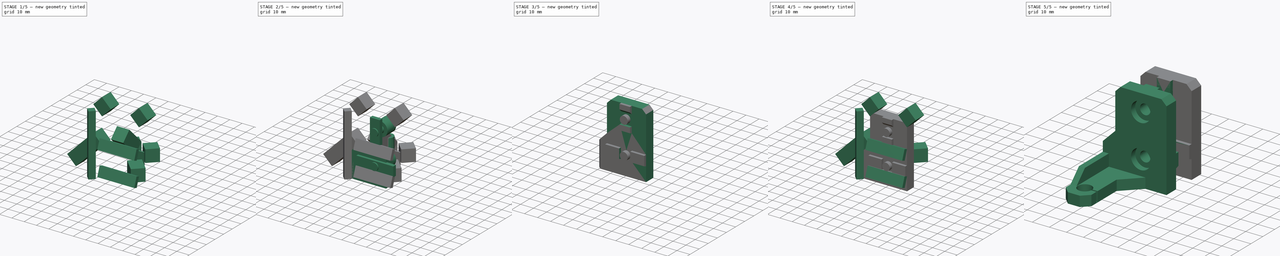
[diagram: build sequence overview — one tinted view per stage of 5, left to right]
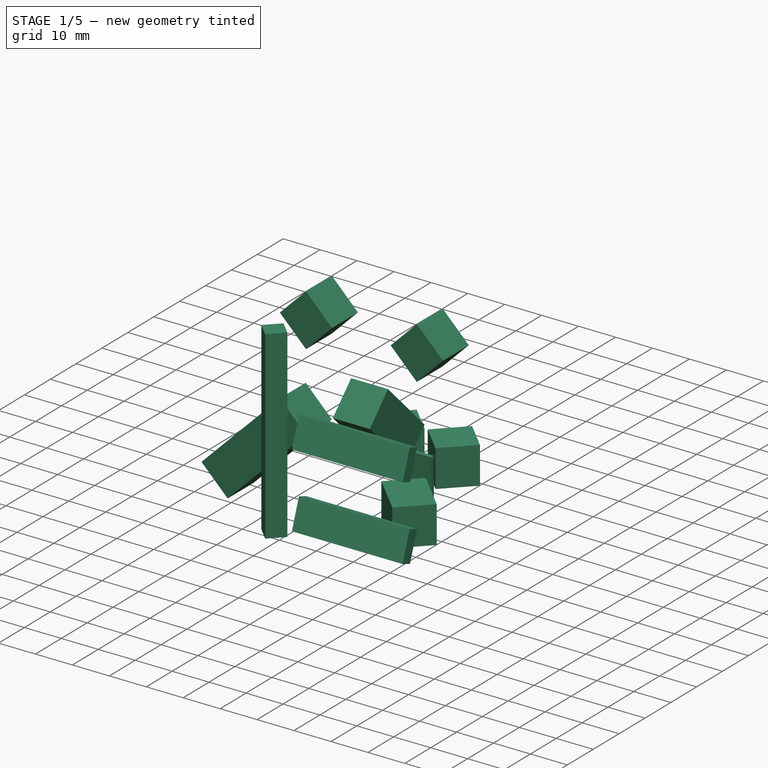
[diagram: stage 1 of 5 — iso view after this stage's code; geometry added in this stage tinted green]
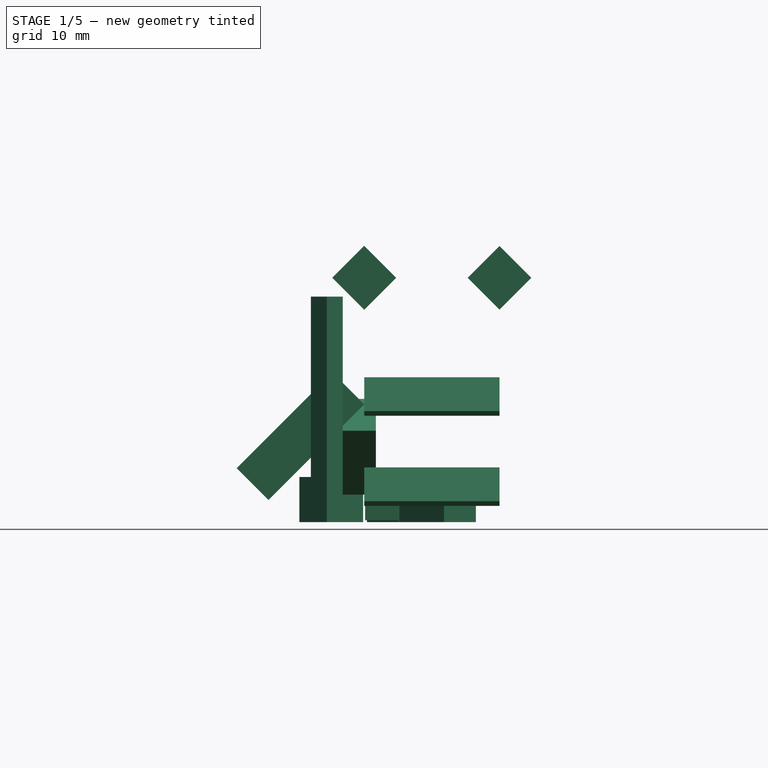
[diagram: stage 1 of 5 — front view after this stage's code; geometry added in this stage tinted green]
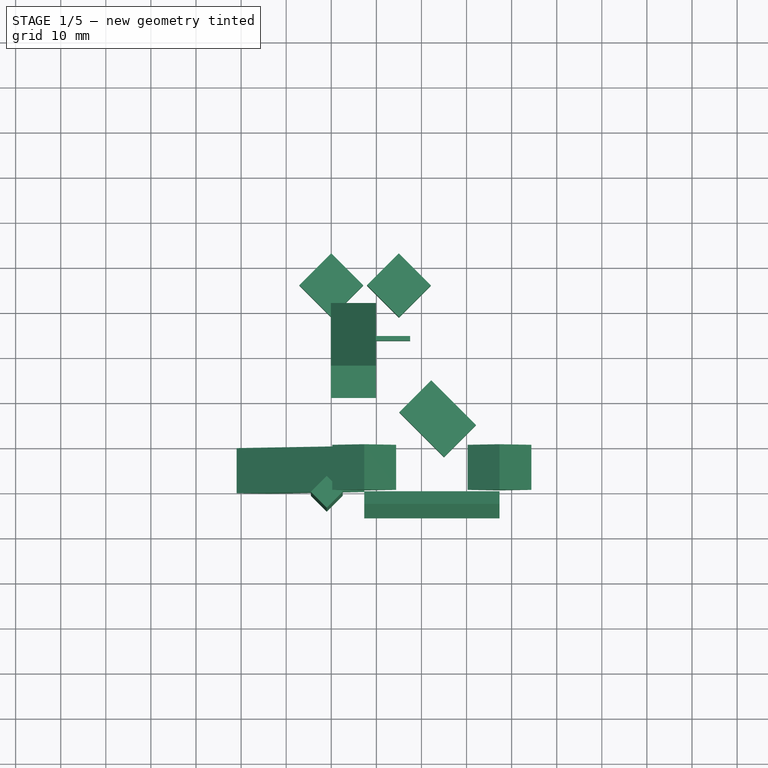
[diagram: stage 1 of 5 — top view after this stage's code; geometry added in this stage tinted green]
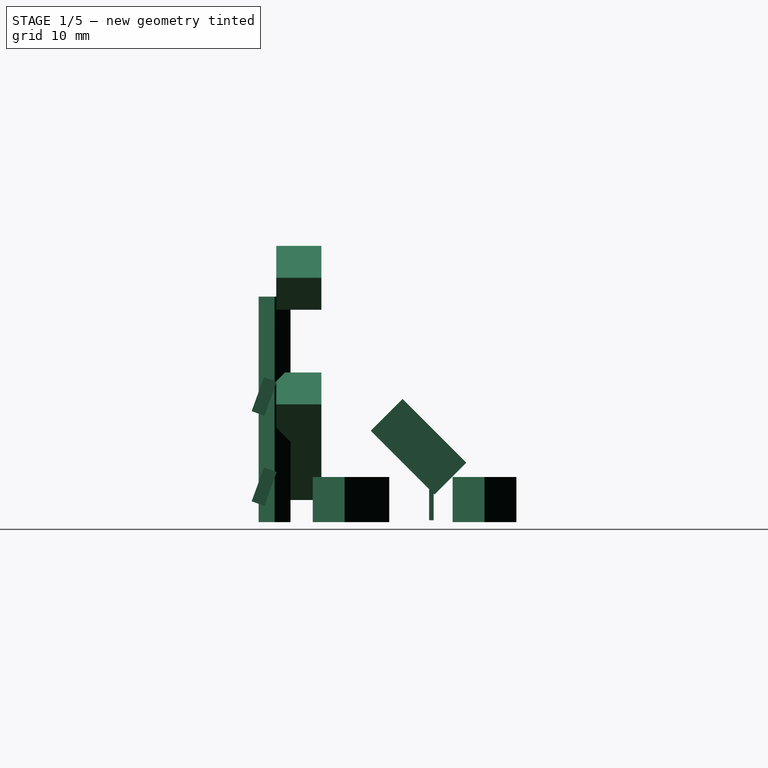
[diagram: stage 1 of 5 — right view after this stage's code; geometry added in this stage tinted green]
FCSTD DOCUMENT  (FreeCAD 0.19R)
Label: z-top
License: All rights reserved
LicenseURL: http://en.wikipedia.org/wiki/All_rights_reserved
objects: Part::Box×36, Part::Cylinder×10, Part::MultiFuse×6, Part::Fuse×3, Part::Cut×2, Part::Mirroring×1, PartDesign::FeatureBase×1, Sketcher::SketchObject×1, PartDesign::Pocket×1, PartDesign::Chamfer×1, PartDesign::Body×1
note: 65 computed .brp shape members not serialized (recipe doc carries the construction recipe); baked Part::Feature solids carry a one-line shape summary decoded from their .brp

FEATURE [Part::Box] cube007
  AttacherType = Attacher::AttachEngine3D
  Height = 30
  Length = 10
  Placement = pos=(7.3,-0.1,26) rot=(0,1,0;3.92699rad)
  Width = 10
FEATURE [Part::Box] cube008
  AttacherType = Attacher::AttachEngine3D
  Height = 20
  Length = 10
  Placement = pos=(-0.1,35,6) rot=(1,0,0;0.785398rad)
  Width = 10
FEATURE [Part::Box] cube009
  AttacherType = Attacher::AttachEngine3D
  Height = 10
  Length = 10
  Placement = pos=(0,39,-0.1) rot=(0,0,1;0.785398rad)
  Width = 10
FEATURE [Part::Box] cube010
  AttacherType = Attacher::AttachEngine3D
  Height = 10
  Length = 10
  Placement = pos=(15,39,-0.1) rot=(0,0,1;0.785398rad)
  Width = 10
FEATURE [Part::Box] cube011
  AttacherType = Attacher::AttachEngine3D
  Height = 10
  Length = 10
  Placement = pos=(7.5,33.8,0.3) rot=(0,0,1;0rad)
  Width = 1
FEATURE [Part::Box] cube012
  AttacherType = Attacher::AttachEngine3D
  Height = 50
  Length = 5
  Placement = pos=(-1,-4,-0.1) rot=(0,0,1;0.785398rad)
  Width = 5
FEATURE [Part::Box] cube013
  AttacherType = Attacher::AttachEngine3D
  Height = 10
  Length = 10
  Placement = pos=(7.3,-0.1,47) rot=(0,-1,0;0.785398rad)
  Width = 10
FEATURE [Part::Box] cube014
  AttacherType = Attacher::AttachEngine3D
  Height = 10
  Length = 10
  Placement = pos=(37.3,-0.1,47) rot=(0,-1,0;0.785398rad)
  Width = 10
FEATURE [Part::Box] cube015
  AttacherType = Attacher::AttachEngine3D
  Height = 10
  Length = 10
  Placement = pos=(25,8,-0.1) rot=(0,0,1;0.785398rad)
  Width = 14
FEATURE [Part::Box] cube016
  AttacherType = Attacher::AttachEngine3D
  Height = 8
  Length = 30
  Placement = pos=(7.3,0,11) rot=(1,0,0;2.79253rad)
  Width = 3
FEATURE [Part::Box] cube017
  AttacherType = Attacher::AttachEngine3D
  Height = 8
  Length = 30
  Placement = pos=(7.3,0,31) rot=(1,0,0;2.79253rad)
  Width = 3
FEATURE [Part::MultiFuse] Group001
  Shapes = -> [cube007,cube008,cube009,cube010,cube011,cube012,cube013,cube014,cube015,cube016,cube017]
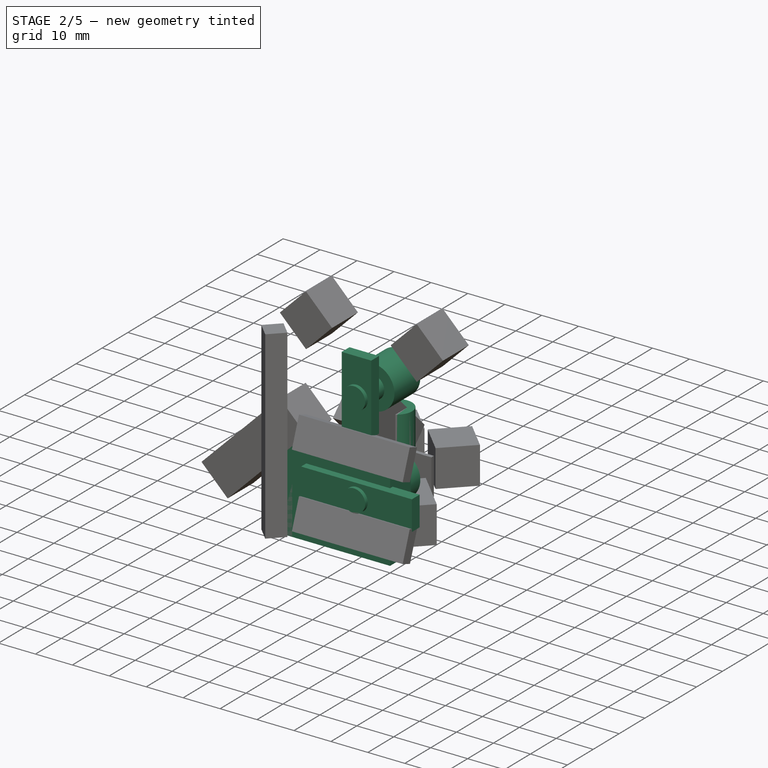
[diagram: stage 2 of 5 — iso view after this stage's code; geometry added in this stage tinted green]
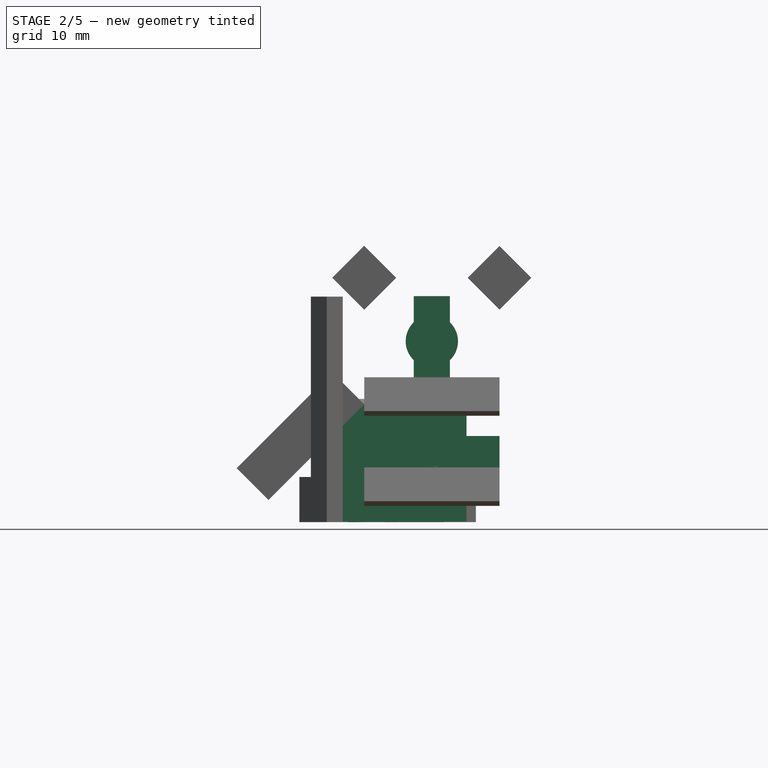
[diagram: stage 2 of 5 — front view after this stage's code; geometry added in this stage tinted green]
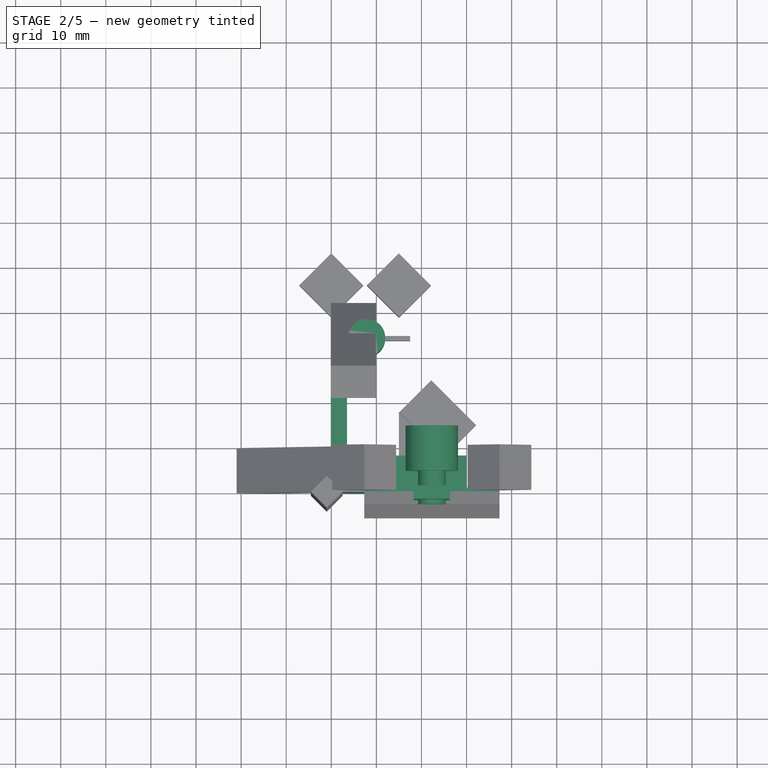
[diagram: stage 2 of 5 — top view after this stage's code; geometry added in this stage tinted green]
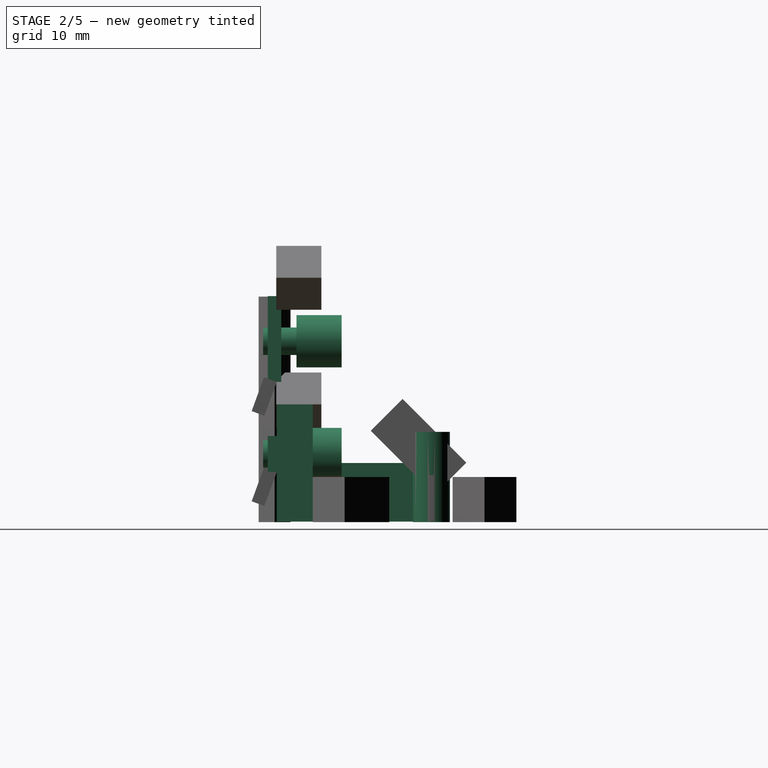
[diagram: stage 2 of 5 — right view after this stage's code; geometry added in this stage tinted green]
FEATURE [Part::Cylinder] cylinder
  Angle = 360
  AttacherType = Attacher::AttachEngine3D
  Height = 10
  Placement = pos=(22.3,4.4,15) rot=(-1,0,0;1.5708rad)
  Radius = 5.8
FEATURE [Part::Cylinder] cylinder001
  Angle = 360
  AttacherType = Attacher::AttachEngine3D
  Height = 10
  Placement = pos=(22.3,4.4,40) rot=(-1,0,0;1.5708rad)
  Radius = 5.8
FEATURE [Part::Cylinder] cylinder002
  Angle = 360
  AttacherType = Attacher::AttachEngine3D
  Height = 10
  Placement = pos=(22.3,-3,15) rot=(-1,0,0;1.5708rad)
  Radius = 3.05
FEATURE [Part::Cylinder] cylinder003
  Angle = 360
  AttacherType = Attacher::AttachEngine3D
  Height = 10
  Placement = pos=(22.3,-3,40) rot=(-1,0,0;1.5708rad)
  Radius = 3.05
FEATURE [Part::Cylinder] cylinder004
  Angle = 360
  AttacherType = Attacher::AttachEngine3D
  Height = 20
  Placement = pos=(7.85,34.3,-0.1) rot=(0,0,1;0rad)
  Radius = 4.1
FEATURE [Part::MultiFuse] Group002
  Shapes = -> [cylinder,cylinder001,cylinder002,cylinder003,cylinder004]
FEATURE [Part::Box] cube002
  AttacherType = Attacher::AttachEngine3D
  Height = 13
  Length = 3.5
  Width = 35
FEATURE [Part::Box] cube003
  AttacherType = Attacher::AttachEngine3D
  Height = 6
  Length = 10
  Placement = pos=(15,8,0) rot=(0,0,1;0rad)
  Width = 10
FEATURE [Part::Box] cube004
  AttacherType = Attacher::AttachEngine3D
  Height = 26
  Length = 30
  Width = 8
FEATURE [Part::Box] cube005
  AttacherType = Attacher::AttachEngine3D
  Height = 19
  Length = 8
  Placement = pos=(18.3,-2,31) rot=(0,0,1;0rad)
  Width = 3
FEATURE [Part::Box] cube006
  AttacherType = Attacher::AttachEngine3D
  Height = 8
  Length = 30
  Placement = pos=(7.3,-2,11) rot=(0,0,1;0rad)
  Width = 3
FEATURE [Part::Fuse] union
  Base = -> Group001
  Tool = -> Group002
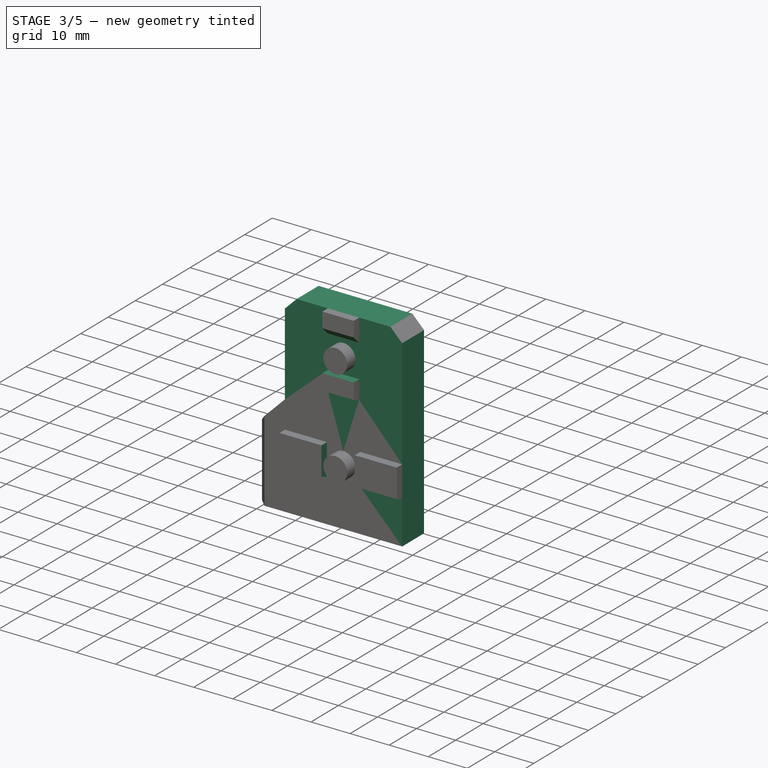
[diagram: stage 3 of 5 — iso view after this stage's code; geometry added in this stage tinted green]
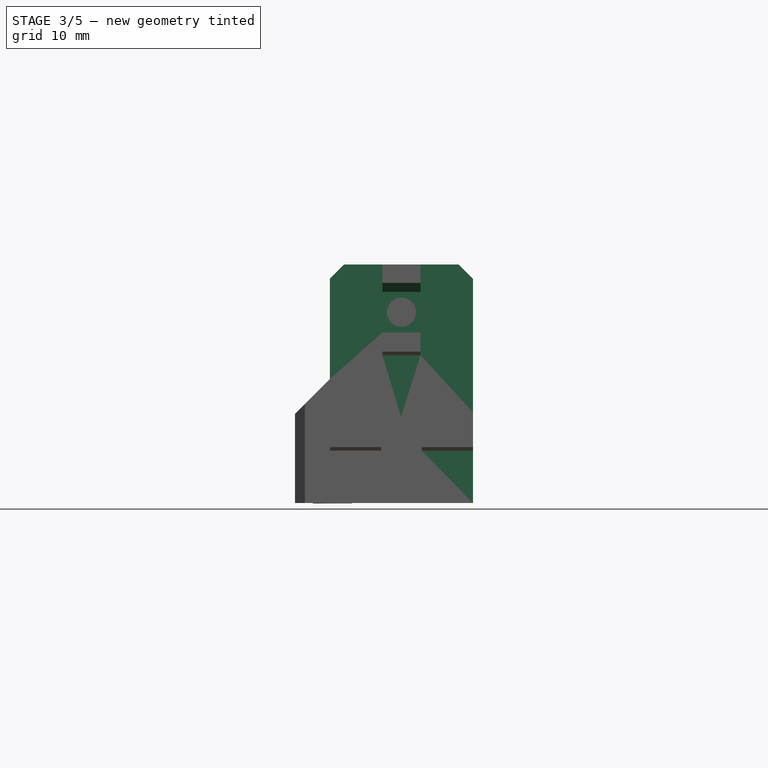
[diagram: stage 3 of 5 — front view after this stage's code; geometry added in this stage tinted green]
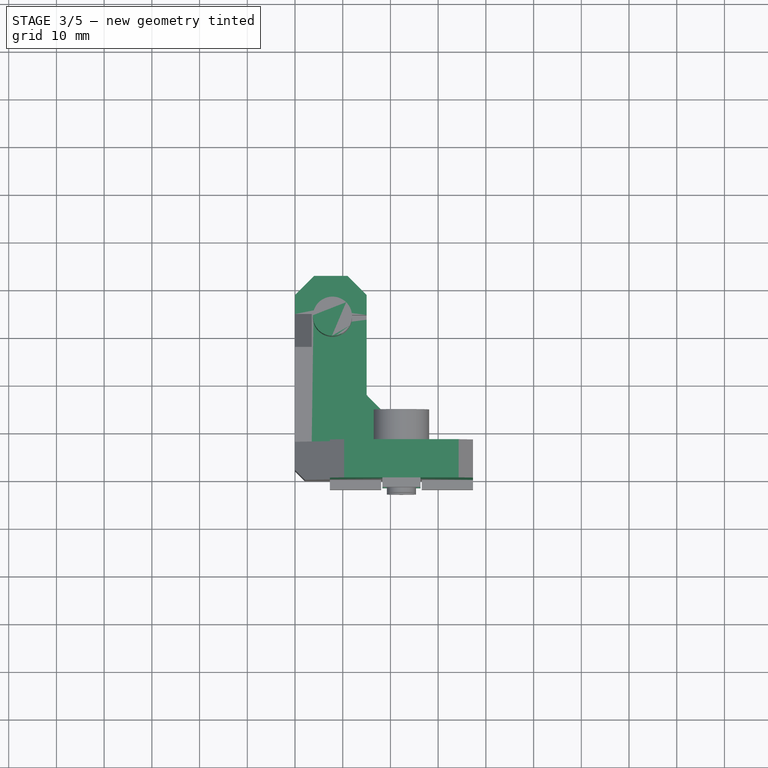
[diagram: stage 3 of 5 — top view after this stage's code; geometry added in this stage tinted green]
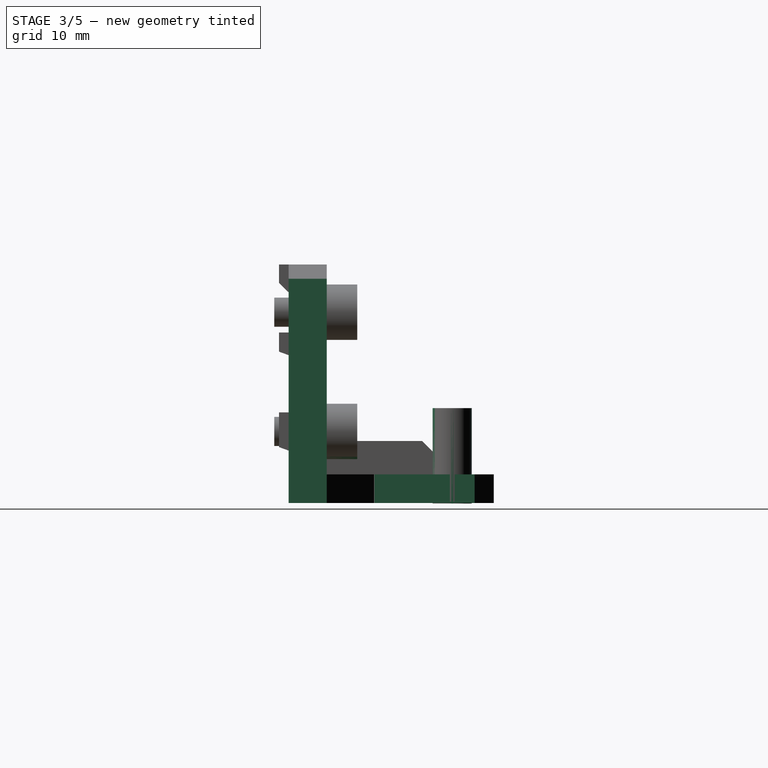
[diagram: stage 3 of 5 — right view after this stage's code; geometry added in this stage tinted green]
FEATURE [Part::Cylinder] cylinder005
  Angle = 360
  AttacherType = Attacher::AttachEngine3D
  Height = 10
  Placement = pos=(22.3,4.4,15) rot=(-1,0,0;1.5708rad)
  Radius = 5.8
FEATURE [Part::Cylinder] cylinder006
  Angle = 360
  AttacherType = Attacher::AttachEngine3D
  Height = 10
  Placement = pos=(22.3,4.4,40) rot=(-1,0,0;1.5708rad)
  Radius = 5.8
FEATURE [Part::Cylinder] cylinder007
  Angle = 360
  AttacherType = Attacher::AttachEngine3D
  Height = 10
  Placement = pos=(22.3,-3,15) rot=(-1,0,0;1.5708rad)
  Radius = 3.05
FEATURE [Part::Cylinder] cylinder008
  Angle = 360
  AttacherType = Attacher::AttachEngine3D
  Height = 10
  Placement = pos=(22.3,-3,40) rot=(-1,0,0;1.5708rad)
  Radius = 3.05
FEATURE [Part::Cylinder] cylinder009
  Angle = 360
  AttacherType = Attacher::AttachEngine3D
  Height = 20
  Placement = pos=(7.85,34.3,-0.1) rot=(0,0,1;0rad)
  Radius = 4.1
FEATURE [Part::MultiFuse] Group005
  Shapes = -> [cylinder005,cylinder006,cylinder007,cylinder008,cylinder009]
FEATURE [Part::Box] cube
  AttacherType = Attacher::AttachEngine3D
  Height = 50
  Length = 30
  Placement = pos=(7.3,0,0) rot=(0,0,1;0rad)
  Width = 8
FEATURE [Part::Box] cube001
  AttacherType = Attacher::AttachEngine3D
  Height = 6
  Length = 15
  Width = 43
FEATURE [Part::MultiFuse] Group
  Shapes = -> [cube,cube001,cube002,cube003,cube004,cube005,cube006]
FEATURE [Part::Cut] difference
  Base = -> Group
  Refine = true
  Tool = -> union
FEATURE [PartDesign::FeatureBase] BaseFeature
  BaseFeature = -> difference
FEATURE [Sketcher::SketchObject] Sketch
  ExternalGeometry = -> [BaseFeature]
  FullyConstrained = true
  MapMode = 5
  Placement = pos=(0,-2,0) rot=(1,0,0;1.5708rad)
  Support = -> [BaseFeature]
  sketch-geometry (10):
    g0: LineSegment StartX=18.05 StartY=19 StartZ=0 EndX=26.55 EndY=19 EndZ=0
    g1: LineSegment StartX=26.55 StartY=19 StartZ=0 EndX=26.55 EndY=11 EndZ=0
    g2: LineSegment StartX=26.55 StartY=11 StartZ=0 EndX=18.05 EndY=11 EndZ=0
    g3: LineSegment StartX=18.05 StartY=11 StartZ=0 EndX=18.05 EndY=19 EndZ=0
    g4: LineSegment StartX=18.3 StartY=44.25 StartZ=0 EndX=26.3 EndY=44.25 EndZ=0
    g5: LineSegment StartX=26.3 StartY=44.25 StartZ=0 EndX=26.3 EndY=35.75 EndZ=0
    g6: LineSegment StartX=26.3 StartY=35.75 StartZ=0 EndX=18.3 EndY=35.75 EndZ=0
    g7: LineSegment StartX=18.3 StartY=35.75 StartZ=0 EndX=18.3 EndY=44.25 EndZ=0
    g8: LineSegment StartX=22.3 StartY=40 StartZ=0 EndX=26.3 EndY=40 EndZ=0
    g9: LineSegment StartX=22.3 StartY=15 StartZ=0 EndX=22.3 EndY=19 EndZ=0
  constraints (28):
    c: Coincident(g0,g1)
    c: Coincident(g2,g3)
    c: Coincident(g3,g0)
    c: Horizontal(g0)
    c: Horizontal(g2)
    c: Vertical(g1)
    c: Vertical(g3)
    c: PointOnObject(g0,g-5)
    c: Coincident(g4,g5)
    c: Coincident(g5,g6)
    c: Coincident(g6,g7)
    c: Coincident(g7,g4)
    c: Horizontal(g4)
    c: Horizontal(g6)
    c: Vertical(g5)
    c: Vertical(g7)
    c: PointOnObject(g4,g-4)
    c: PointOnObject(g5,g-3)
    c: Coincident(g2,g1)
    c: PointOnObject(g1,g-9)
    c: Coincident(g8,g-8)
    c: PointOnObject(g8,g5)
    c: Coincident(g9,g-7)
    c: PointOnObject(g9,g0)
    c: Symmetric(g5,g4,g8)
    c: DistanceY(g7,g7) = 8.5
    c: Symmetric(g0,g0,g9)
    c: Equal(g7,g0)
FEATURE [PartDesign::Pocket] Pocket
  BaseFeature = -> BaseFeature
  Length = 2
  Length2 = 100
  Profile = -> Sketch
  Type = 0
FEATURE [PartDesign::Chamfer] Chamfer
  Angle = 45
  Base = -> Pocket [Edge101]
  BaseFeature = -> Pocket
  ChamferType = 0
  FlipDirection = false
  Refine = true
  Size = 1.9
  Size2 = 1
  SupportTransform = false
FEATURE [PartDesign::Body] Body
  BaseFeature = -> difference
  Group = -> [BaseFeature,Sketch,Pocket,Chamfer]
  Origin = -> Origin
  Tip = -> Chamfer
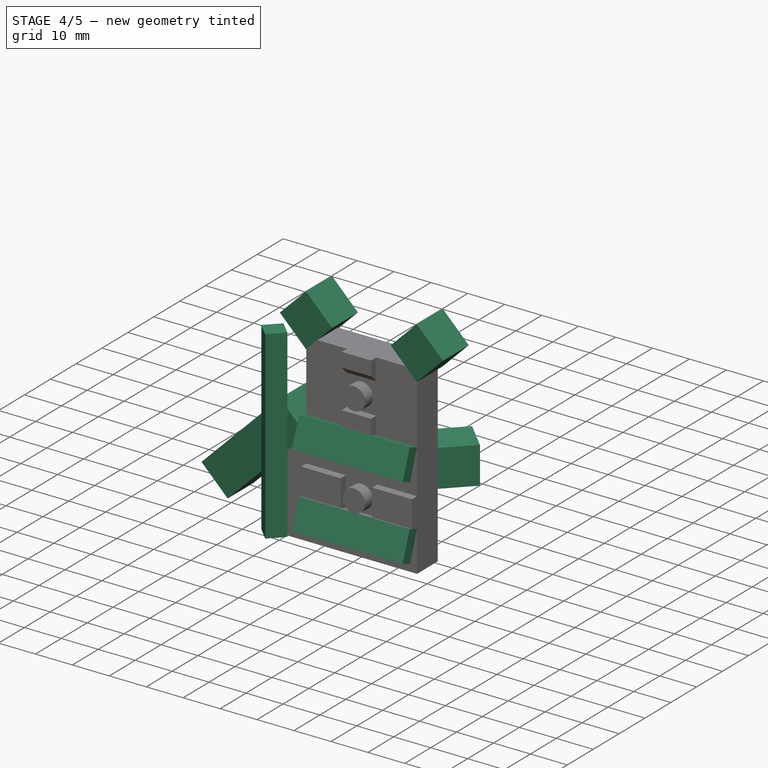
[diagram: stage 4 of 5 — iso view after this stage's code; geometry added in this stage tinted green]
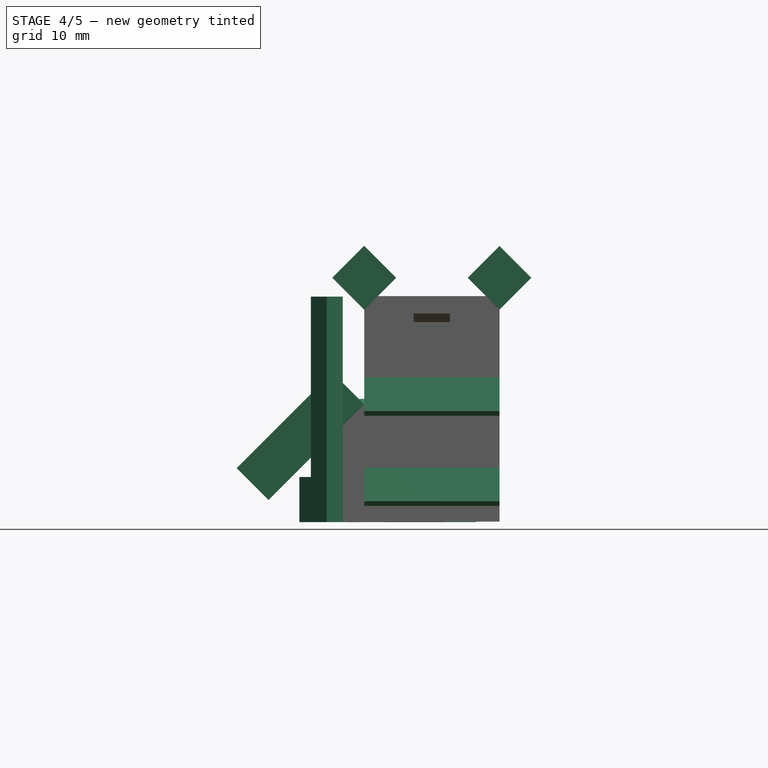
[diagram: stage 4 of 5 — front view after this stage's code; geometry added in this stage tinted green]
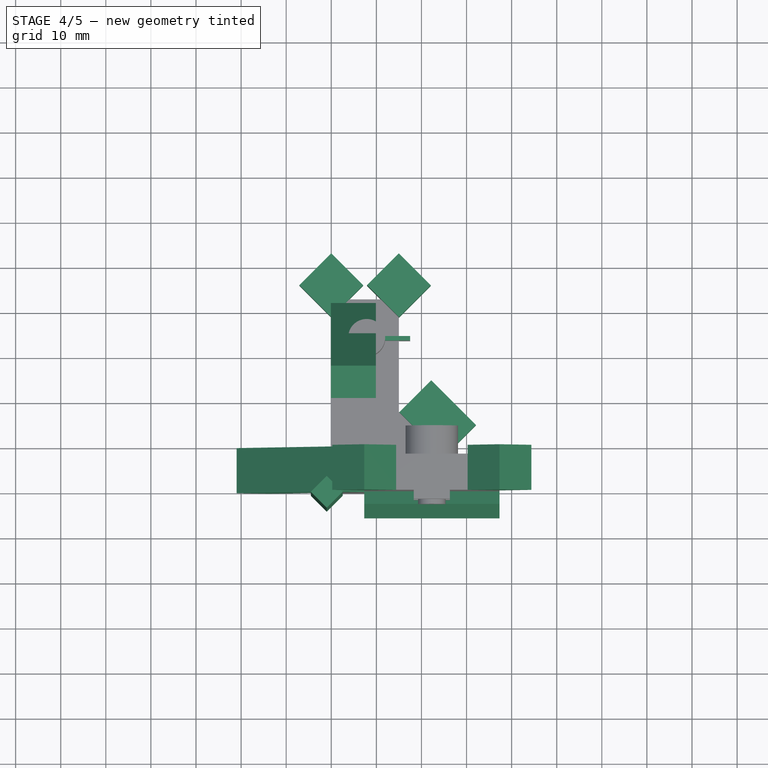
[diagram: stage 4 of 5 — top view after this stage's code; geometry added in this stage tinted green]
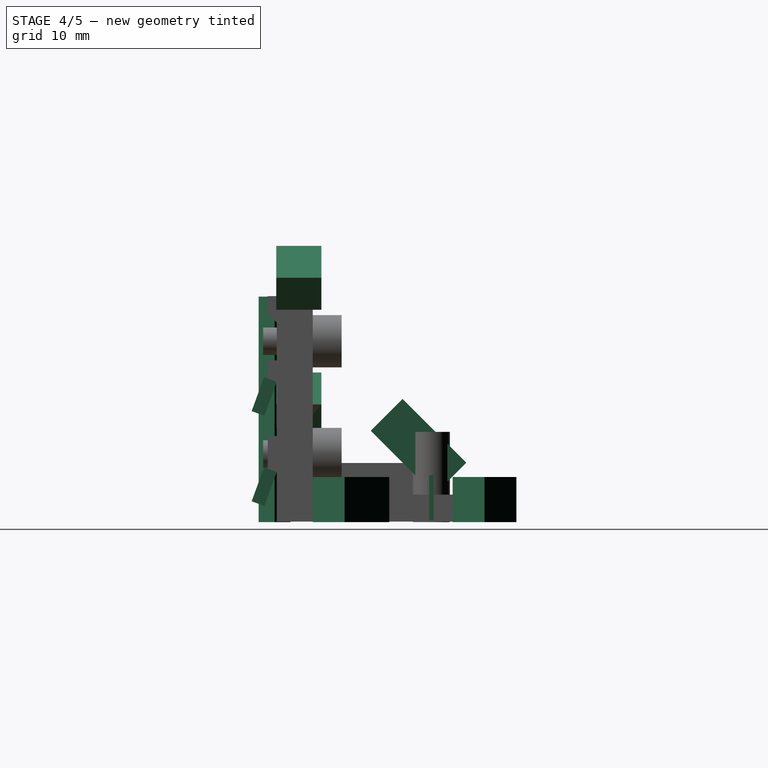
[diagram: stage 4 of 5 — right view after this stage's code; geometry added in this stage tinted green]
FEATURE [Part::Box] cube025
  AttacherType = Attacher::AttachEngine3D
  Height = 30
  Length = 10
  Placement = pos=(7.3,-0.1,26) rot=(0,1,0;3.92699rad)
  Width = 10
FEATURE [Part::Box] cube026
  AttacherType = Attacher::AttachEngine3D
  Height = 20
  Length = 10
  Placement = pos=(-0.1,35,6) rot=(1,0,0;0.785398rad)
  Width = 10
FEATURE [Part::Box] cube027
  AttacherType = Attacher::AttachEngine3D
  Height = 10
  Length = 10
  Placement = pos=(0,39,-0.1) rot=(0,0,1;0.785398rad)
  Width = 10
FEATURE [Part::Box] cube028
  AttacherType = Attacher::AttachEngine3D
  Height = 10
  Length = 10
  Placement = pos=(15,39,-0.1) rot=(0,0,1;0.785398rad)
  Width = 10
FEATURE [Part::Box] cube029
  AttacherType = Attacher::AttachEngine3D
  Height = 10
  Length = 10
  Placement = pos=(7.5,33.8,0.3) rot=(0,0,1;0rad)
  Width = 1
FEATURE [Part::Box] cube030
  AttacherType = Attacher::AttachEngine3D
  Height = 50
  Length = 5
  Placement = pos=(-1,-4,-0.1) rot=(0,0,1;0.785398rad)
  Width = 5
FEATURE [Part::Box] cube031
  AttacherType = Attacher::AttachEngine3D
  Height = 10
  Length = 10
  Placement = pos=(7.3,-0.1,47) rot=(0,-1,0;0.785398rad)
  Width = 10
FEATURE [Part::Box] cube032
  AttacherType = Attacher::AttachEngine3D
  Height = 10
  Length = 10
  Placement = pos=(37.3,-0.1,47) rot=(0,-1,0;0.785398rad)
  Width = 10
FEATURE [Part::Box] cube033
  AttacherType = Attacher::AttachEngine3D
  Height = 10
  Length = 10
  Placement = pos=(25,8,-0.1) rot=(0,0,1;0.785398rad)
  Width = 14
FEATURE [Part::Box] cube034
  AttacherType = Attacher::AttachEngine3D
  Height = 8
  Length = 30
  Placement = pos=(7.3,0,11) rot=(1,0,0;2.79253rad)
  Width = 3
FEATURE [Part::Box] cube035
  AttacherType = Attacher::AttachEngine3D
  Height = 8
  Length = 30
  Placement = pos=(7.3,0,31) rot=(1,0,0;2.79253rad)
  Width = 3
FEATURE [Part::MultiFuse] Group004
  Shapes = -> [cube025,cube026,cube027,cube028,cube029,cube030,cube031,cube032,cube033,cube034,cube035]
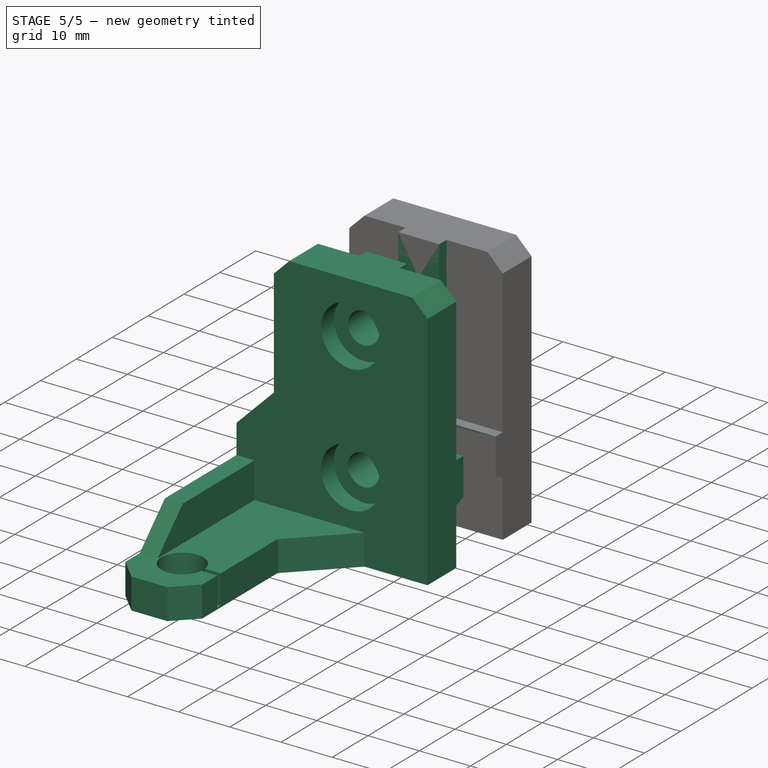
[diagram: stage 5 of 5 — iso view after this stage's code; geometry added in this stage tinted green]
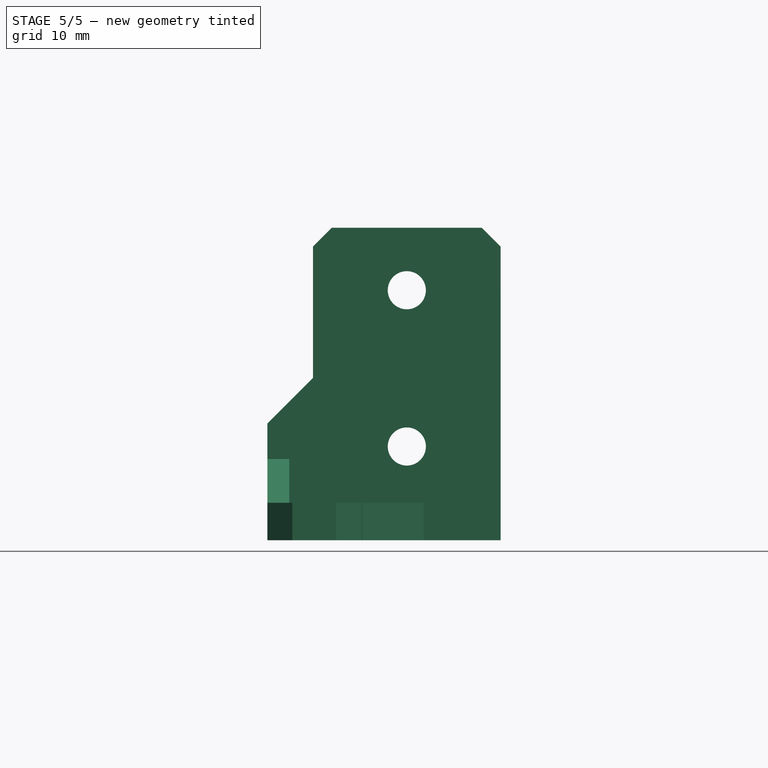
[diagram: stage 5 of 5 — front view after this stage's code; geometry added in this stage tinted green]
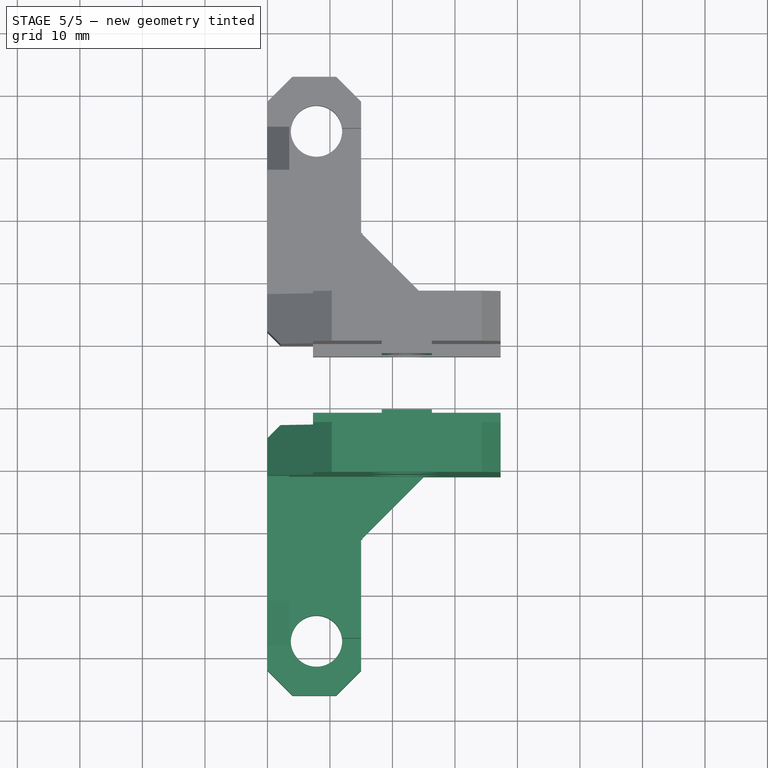
[diagram: stage 5 of 5 — top view after this stage's code; geometry added in this stage tinted green]
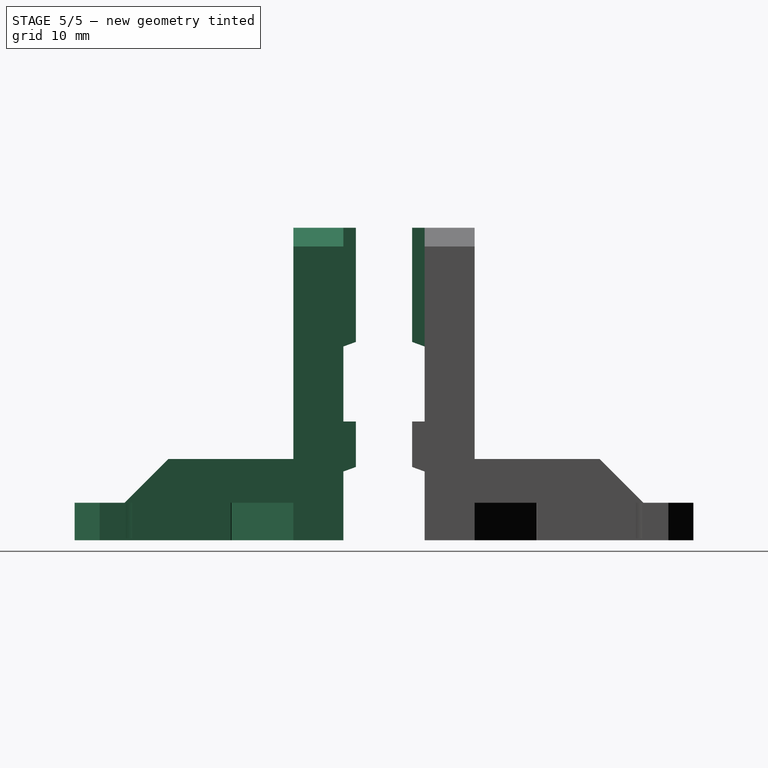
[diagram: stage 5 of 5 — right view after this stage's code; geometry added in this stage tinted green]
FEATURE [Part::Box] cube018
  AttacherType = Attacher::AttachEngine3D
  Height = 50
  Length = 30
  Placement = pos=(7.3,0,0) rot=(0,0,1;0rad)
  Width = 8
FEATURE [Part::Box] cube019
  AttacherType = Attacher::AttachEngine3D
  Height = 6
  Length = 15
  Width = 43
FEATURE [Part::Box] cube020
  AttacherType = Attacher::AttachEngine3D
  Height = 13
  Length = 3.5
  Width = 35
FEATURE [Part::Box] cube021
  AttacherType = Attacher::AttachEngine3D
  Height = 6
  Length = 10
  Placement = pos=(15,8,0) rot=(0,0,1;0rad)
  Width = 10
FEATURE [Part::Box] cube022
  AttacherType = Attacher::AttachEngine3D
  Height = 26
  Length = 30
  Width = 8
FEATURE [Part::Box] cube023
  AttacherType = Attacher::AttachEngine3D
  Height = 19
  Length = 8
  Placement = pos=(18.3,-2,31) rot=(0,0,1;0rad)
  Width = 3
FEATURE [Part::Box] cube024
  AttacherType = Attacher::AttachEngine3D
  Height = 8
  Length = 30
  Placement = pos=(7.3,-2,11) rot=(0,0,1;0rad)
  Width = 3
FEATURE [Part::MultiFuse] Group003
  Shapes = -> [cube018,cube019,cube020,cube021,cube022,cube023,cube024]
FEATURE [Part::Fuse] union001
  Base = -> Group004
  Tool = -> Group005
FEATURE [Part::Cut] difference001
  Base = -> Group003
  Tool = -> union001
FEATURE [Part::Mirroring] mirr_difference001  label="mirrored difference001"
  Base = (0,0,0)
  Normal = (0,1,0)
  Placement = pos=(0,-13,0) rot=(0,0,1;0rad)
  Source = -> difference001
FEATURE [Part::Fuse] Group006
  Base = -> difference
  Tool = -> mirr_difference001
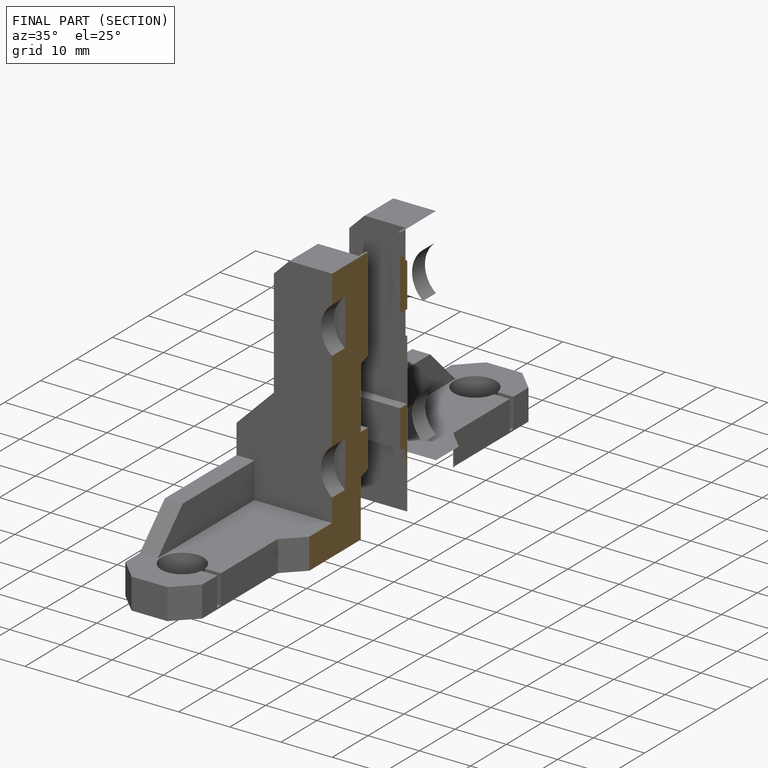
[diagram: finished part — half-section view (interior)]
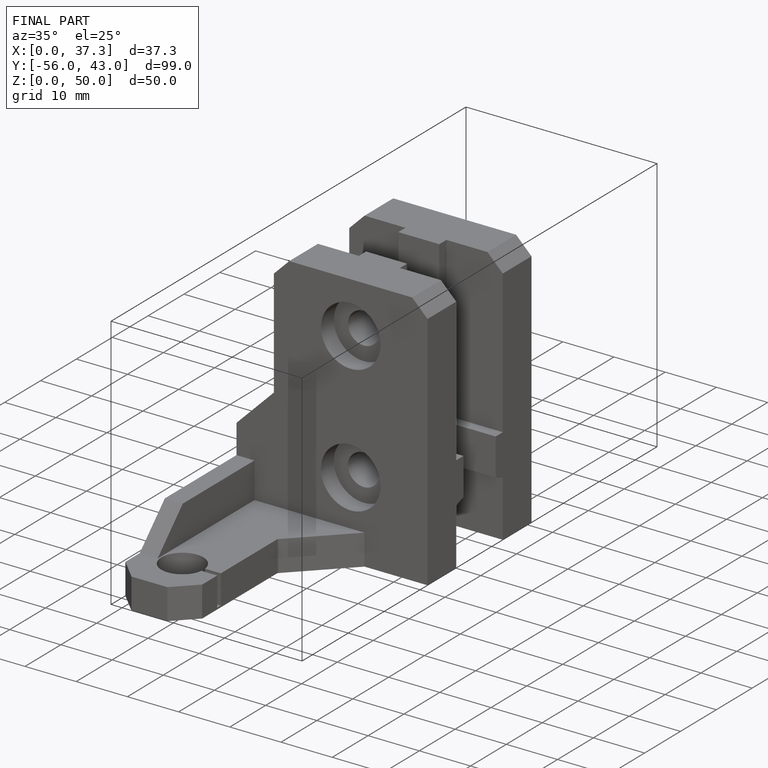
[diagram: finished part — iso view with bounding-box wireframe]
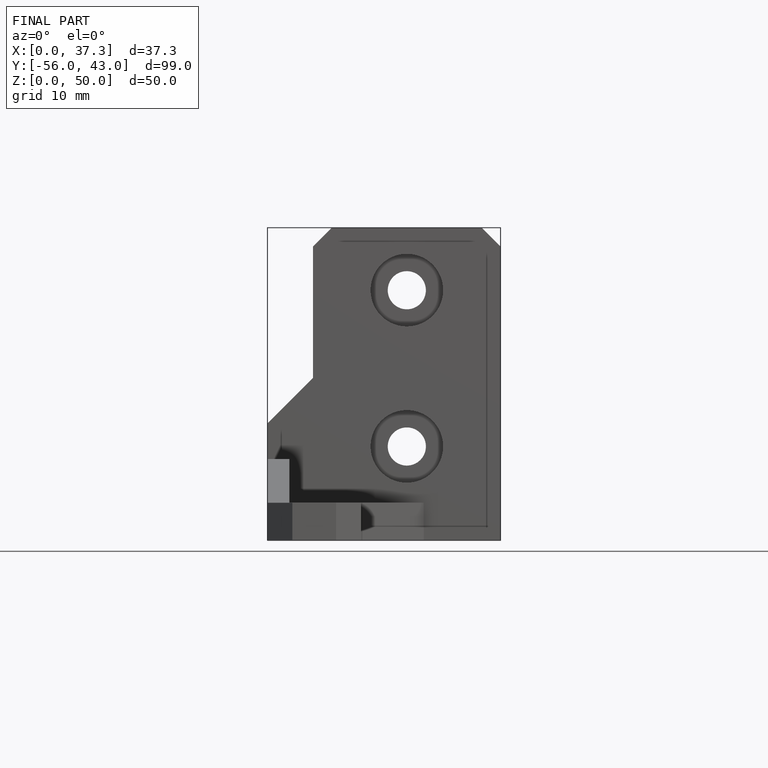
[diagram: finished part — front view with bounding-box wireframe]
